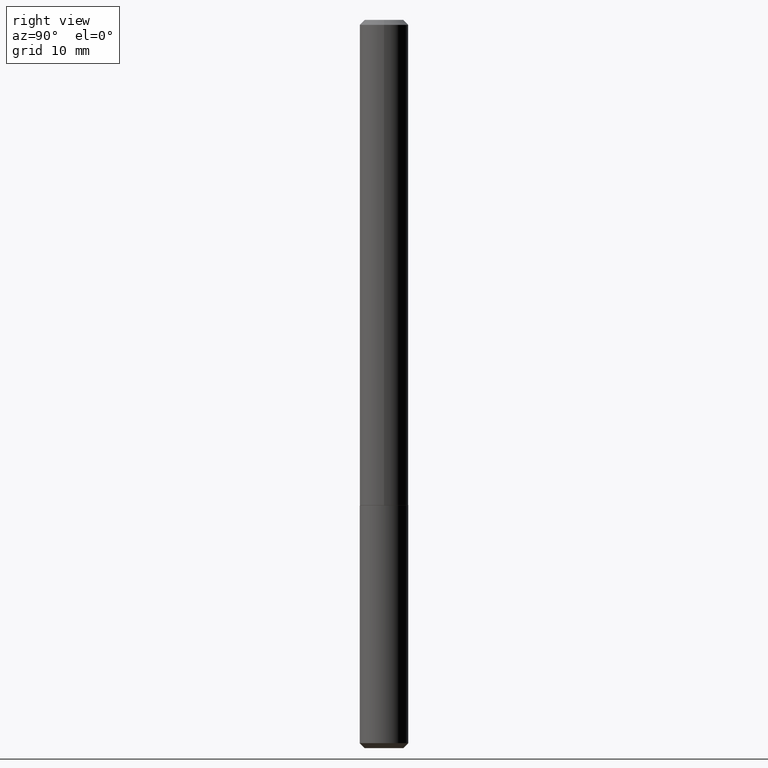
[diagram: clean part render]
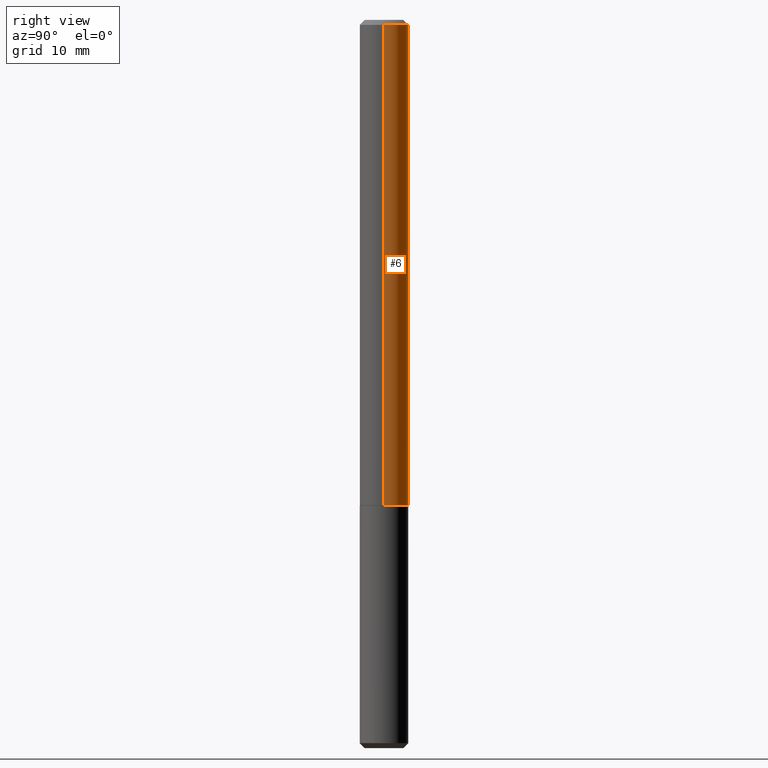
[diagram: same view with one face highlighted and labeled with its STEP entity id]
A machine part, right view. The second image highlights one B-rep face of the part: STEP entity #6.
In plain terms, the highlighted cylindrical surface (edge-blend (fillet) strip) has radius 2.5006 mm, axis along (-0, 0, 1).
Its self-contained STEP definition (entity closure, byte-faithful):
#6 = ADVANCED_FACE ( 'NONE', ( #128 ), #313, .T. ) ;
#25 = AXIS2_PLACEMENT_3D ( 'NONE', #35, #395, #390 ) ;
#30 = AXIS2_PLACEMENT_3D ( 'NONE', #256, #363, #109 ) ;
#35 = CARTESIAN_POINT ( 'NONE',  ( 0.000000000000000000, 0.000000000000000000, 0.000000000000000000 ) ) ;
#40 = ORIENTED_EDGE ( 'NONE', *, *, #121, .F. ) ;
#52 = EDGE_CURVE ( 'NONE', #342, #216, #221, .T. ) ;
#92 = VERTEX_POINT ( 'NONE', #231 ) ;
#104 = VECTOR ( 'NONE', #271, 39.37007874015748143 ) ;
#109 = DIRECTION ( 'NONE',  ( 1.000000000000000000, -6.982962677686268288E-15, 0.000000000000000000 ) ) ;
#115 = EDGE_CURVE ( 'NONE', #322, #216, #268, .T. ) ;
#118 = AXIS2_PLACEMENT_3D ( 'NONE', #411, #250, #343 ) ;
#121 = EDGE_CURVE ( 'NONE', #92, #342, #148, .T. ) ;
#128 = FACE_OUTER_BOUND ( 'NONE', #169, .T. ) ;
#135 = CARTESIAN_POINT ( 'NONE',  ( 0.09844999999999999585, -7.573023023950763513E-16, -0.02000000000000014960 ) ) ;
#148 = LINE ( 'NONE', #368, #104 ) ;
#160 = ORIENTED_EDGE ( 'NONE', *, *, #115, .T. ) ;
#169 = EDGE_LOOP ( 'NONE', ( #201, #160, #321, #40 ) ) ;
#201 = ORIENTED_EDGE ( 'NONE', *, *, #348, .T. ) ;
#216 = VERTEX_POINT ( 'NONE', #239 ) ;
#221 = CIRCLE ( 'NONE', #118, 0.09844999999999999585 ) ;
#231 = CARTESIAN_POINT ( 'NONE',  ( 0.09845000000000023177, -7.558707950461525130E-15, -1.967999999999999972 ) ) ;
#239 = CARTESIAN_POINT ( 'NONE',  ( -0.09844999999999999585, -2.771003127454265485E-15, -0.02000000000000014960 ) ) ;
#249 = CIRCLE ( 'NONE', #30, 0.09845000000000023177 ) ;
#250 = DIRECTION ( 'NONE',  ( -2.445468806185136597E-29, 3.491481338843145583E-15, 1.000000000000000000 ) ) ;
#256 = CARTESIAN_POINT ( 'NONE',  ( 4.812682610572349033E-29, -6.871235274843309415E-15, -1.967999999999999972 ) ) ;
#263 = CARTESIAN_POINT ( 'NONE',  ( -0.09845000000000023177, -6.171705951487488938E-15, -1.967999999999999972 ) ) ;
#268 = LINE ( 'NONE', #269, #379 ) ;
#269 = CARTESIAN_POINT ( 'NONE',  ( -0.09845000000000010687, 6.995293233558193923E-16, -4.842691596355960348E-30 ) ) ;
#271 = DIRECTION ( 'NONE',  ( -2.445468806185136877E-29, 3.491481338843145188E-15, 1.000000000000000000 ) ) ;
#296 = DIRECTION ( 'NONE',  ( -2.445468806185136877E-29, 3.491481338843145188E-15, 1.000000000000000000 ) ) ;
#313 = CYLINDRICAL_SURFACE ( 'NONE', #25, 0.09845000000000010687 ) ;
#321 = ORIENTED_EDGE ( 'NONE', *, *, #52, .F. ) ;
#322 = VERTEX_POINT ( 'NONE', #263 ) ;
#342 = VERTEX_POINT ( 'NONE', #135 ) ;
#343 = DIRECTION ( 'NONE',  ( 1.000000000000000000, -6.982962677686266711E-15, 0.000000000000000000 ) ) ;
#348 = EDGE_CURVE ( 'NONE', #92, #322, #249, .T. ) ;
#363 = DIRECTION ( 'NONE',  ( -2.445468806185136597E-29, 3.491481338843145583E-15, 1.000000000000000000 ) ) ;
#368 = CARTESIAN_POINT ( 'NONE',  ( 0.09845000000000010687, -6.874726756182137434E-16, 4.800596035771104119E-30 ) ) ;
#379 = VECTOR ( 'NONE', #296, 39.37007874015748143 ) ;
#390 = DIRECTION ( 'NONE',  ( 1.000000000000000000, -6.982962677686267499E-15, 4.876176775795935793E-29 ) ) ;
#395 = DIRECTION ( 'NONE',  ( -2.445468806185136597E-29, 3.491481338843145583E-15, 1.000000000000000000 ) ) ;
#411 = CARTESIAN_POINT ( 'NONE',  ( 4.890937612370309067E-31, -6.982962677686343378E-17, -0.02000000000000014960 ) ) ;